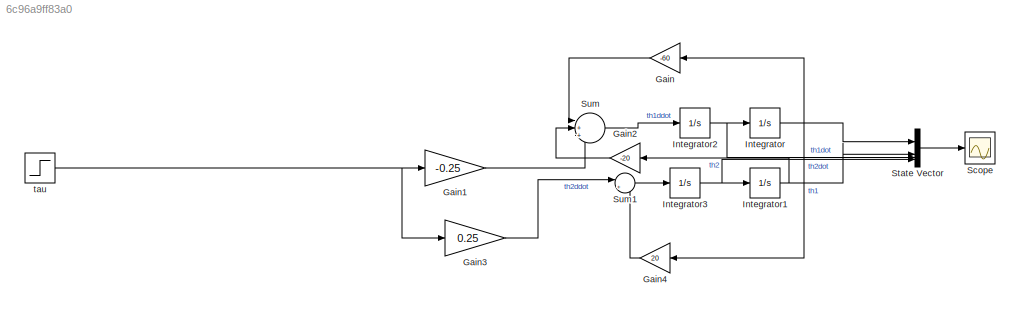
MODEL slx_6c96a9ff83a0
KIND model
CONFIG AbsTol = auto
CONFIG EnableMultiTasking = off
CONFIG FixedStep = auto
CONFIG MaxStep = 1e-4
CONFIG MinStep = auto
CONFIG RelTol = 1e-4
CONFIG SampleTimeConstraint = Unconstrained
CONFIG SolverName = ode45
CONFIG StartTime = 0.0
CONFIG StopTime = 10.0
BLOCK [Gain] Gain
  Gain = -60
BLOCK [Gain] Gain1
  Gain = -0.25
BLOCK [Gain] Gain2
  Gain = -20
BLOCK [Gain] Gain3
  Gain = 0.25
BLOCK [Gain] Gain4
  Gain = 20
BLOCK [Integrator] Integrator
BLOCK [Integrator] Integrator1
BLOCK [Integrator] Integrator2
BLOCK [Integrator] Integrator3
BLOCK [Scope] Scope
  Floating = off
  NumInputPorts = 1
  ScopeSpecificationString = Simulink.scopes.TimeScopeBlockCfg('CurrentConfiguration', extmgr.ConfigurationSet(extmgr.Configuration('Core','General UI',true),extmgr.Configuration('Core','Source UI',true),extmgr.Configuration('Sources','WiredSimulink',true),extmgr.Configuration('Visuals','Time Domain',true,'SerializedDisplays',{struct('MinYLimReal','-0.09326','MaxYLimReal','0.09364','YLabelReal','','MinYLimMag','0.00000','MaxY...<+1374ch>
BLOCK [Mux] State Vector
  DisplayOption = bar
BLOCK [Sum] Sum
  Inputs = |+++
BLOCK [Sum] Sum1
  Inputs = |++
BLOCK [Step] tau
  SampleTime = 0
LINE Gain1:1 -> Sum:3
LINE Gain2:1 -> Sum:2
LINE Gain3:1 -> Sum1:1
LINE Gain4:1 -> Sum1:2
LINE Gain:1 -> Sum:1
NET Integrator1:1 -> Gain2:1, State Vector:2
NET Integrator2:1 -> Integrator:1, State Vector:3
NET Integrator3:1 -> Integrator1:1, State Vector:4
NET Integrator:1 -> Gain4:1, Gain:1, State Vector:1
LINE State Vector:1 -> Scope:1
LINE Sum1:1 -> Integrator3:1
LINE Sum:1 -> Integrator2:1
NET tau:1 -> Gain1:1, Gain3:1
note: NET lines group one-source signal fan-out (src -> all destinations, sorted); 1:1 wires keep LINE
